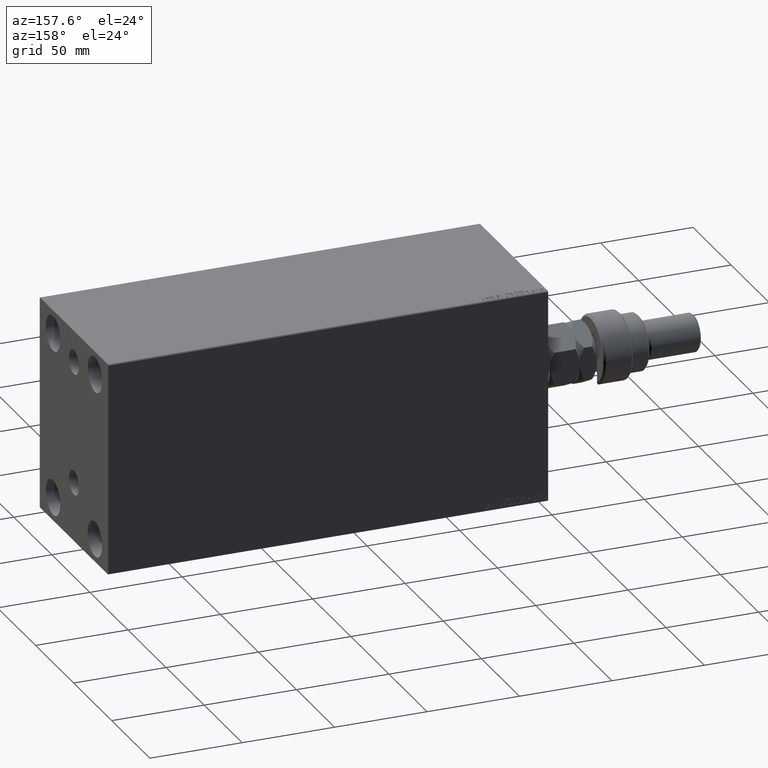
[diagram: clean part render]
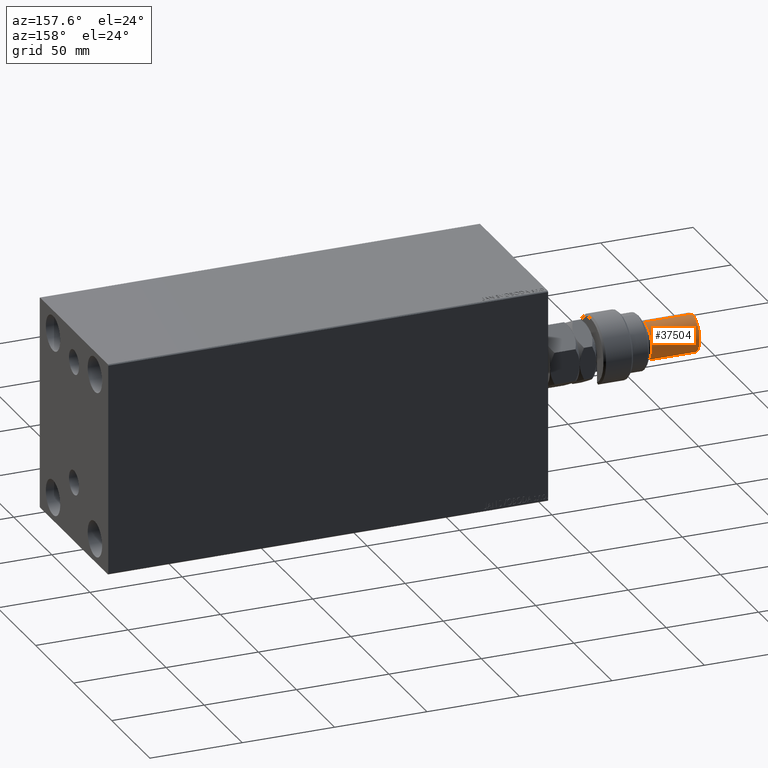
[diagram: same view with one face highlighted and labeled with its STEP entity id]
A machine part, auxiliary view. The second image highlights one B-rep face of the part: STEP entity #37504.
In plain terms, the highlighted cylindrical surface (edge-blend (fillet) strip) has radius 10 mm, axis along (1, -0, -0).
Its self-contained STEP definition (entity closure, byte-faithful):
#1489 = CARTESIAN_POINT ( 'NONE',  ( 10.00000000000000000, 1.224646799147353256E-15, 56.00000000000000711 ) ) ;
#2334 = EDGE_CURVE ( 'NONE', #26851, #18209, #28618, .T. ) ;
#3991 = EDGE_LOOP ( 'NONE', ( #12803, #7280, #45990, #17035 ) ) ;
#4292 = CARTESIAN_POINT ( 'NONE',  ( -10.00000000000000000, 0.000000000000000000, 56.00000000000000711 ) ) ;
#5596 = DIRECTION ( 'NONE',  ( 1.000000000000000000, 0.000000000000000000, 0.000000000000000000 ) ) ;
#6653 = CARTESIAN_POINT ( 'NONE',  ( 0.000000000000000000, 0.000000000000000000, 54.99999999999998579 ) ) ;
#7280 = ORIENTED_EDGE ( 'NONE', *, *, #30414, .T. ) ;
#8773 = CARTESIAN_POINT ( 'NONE',  ( 10.00000000000000000, 1.224646799147353256E-15, 29.00000000000000711 ) ) ;
#9248 = VERTEX_POINT ( 'NONE', #8773 ) ;
#12259 = AXIS2_PLACEMENT_3D ( 'NONE', #30408, #37008, #26633 ) ;
#12803 = ORIENTED_EDGE ( 'NONE', *, *, #2334, .T. ) ;
#13831 = CARTESIAN_POINT ( 'NONE',  ( -10.00000000000000000, 0.000000000000000000, 29.00000000000000711 ) ) ;
#14964 = EDGE_CURVE ( 'NONE', #9248, #40180, #44858, .T. ) ;
#17035 = ORIENTED_EDGE ( 'NONE', *, *, #20054, .F. ) ;
#18209 = VERTEX_POINT ( 'NONE', #41488 ) ;
#20054 = EDGE_CURVE ( 'NONE', #26851, #40180, #44169, .T. ) ;
#24478 = AXIS2_PLACEMENT_3D ( 'NONE', #45694, #38133, #5596 ) ;
#24684 = CARTESIAN_POINT ( 'NONE',  ( -10.00000000000000000, 0.000000000000000000, 54.99999999999998579 ) ) ;
#25279 = DIRECTION ( 'NONE',  ( 1.000000000000000000, 0.000000000000000000, 0.000000000000000000 ) ) ;
#26633 = DIRECTION ( 'NONE',  ( -1.000000000000000000, 0.000000000000000000, 0.000000000000000000 ) ) ;
#26851 = VERTEX_POINT ( 'NONE', #24684 ) ;
#26948 = DIRECTION ( 'NONE',  ( -0.000000000000000000, -0.000000000000000000, -1.000000000000000000 ) ) ;
#28618 = CIRCLE ( 'NONE', #34643, 10.00000000000000000 ) ;
#30408 = CARTESIAN_POINT ( 'NONE',  ( 0.000000000000000000, 0.000000000000000000, 56.00000000000000711 ) ) ;
#30414 = EDGE_CURVE ( 'NONE', #18209, #9248, #33806, .T. ) ;
#33806 = LINE ( 'NONE', #1489, #35501 ) ;
#34177 = FACE_OUTER_BOUND ( 'NONE', #3991, .T. ) ;
#34643 = AXIS2_PLACEMENT_3D ( 'NONE', #6653, #42770, #25279 ) ;
#35501 = VECTOR ( 'NONE', #26948, 1000.000000000000000 ) ;
#37008 = DIRECTION ( 'NONE',  ( -0.000000000000000000, -0.000000000000000000, -1.000000000000000000 ) ) ;
#37239 = CYLINDRICAL_SURFACE ( 'NONE', #12259, 10.00000000000000000 ) ;
#37504 = ADVANCED_FACE ( 'NONE', ( #34177 ), #37239, .T. ) ;
#38133 = DIRECTION ( 'NONE',  ( -0.000000000000000000, -0.000000000000000000, 1.000000000000000000 ) ) ;
#38225 = VECTOR ( 'NONE', #41081, 1000.000000000000000 ) ;
#40180 = VERTEX_POINT ( 'NONE', #13831 ) ;
#41081 = DIRECTION ( 'NONE',  ( -0.000000000000000000, -0.000000000000000000, -1.000000000000000000 ) ) ;
#41488 = CARTESIAN_POINT ( 'NONE',  ( 10.00000000000000000, 1.224646799147353256E-15, 54.99999999999998579 ) ) ;
#42770 = DIRECTION ( 'NONE',  ( 0.000000000000000000, 0.000000000000000000, -1.000000000000000000 ) ) ;
#44169 = LINE ( 'NONE', #4292, #38225 ) ;
#44858 = CIRCLE ( 'NONE', #24478, 10.00000000000000000 ) ;
#45694 = CARTESIAN_POINT ( 'NONE',  ( 0.000000000000000000, 0.000000000000000000, 29.00000000000000711 ) ) ;
#45990 = ORIENTED_EDGE ( 'NONE', *, *, #14964, .T. ) ;